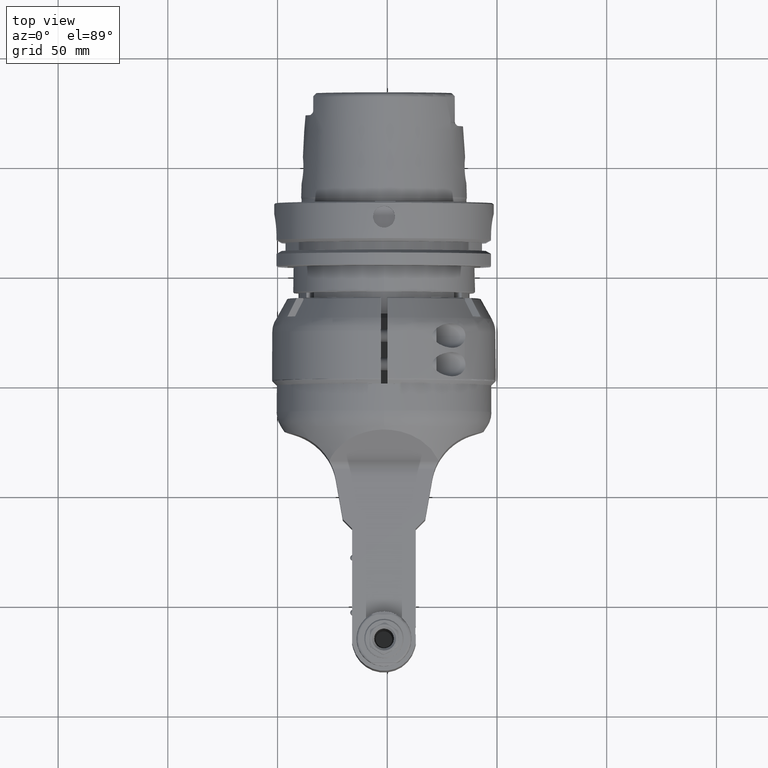
[diagram: clean part render]
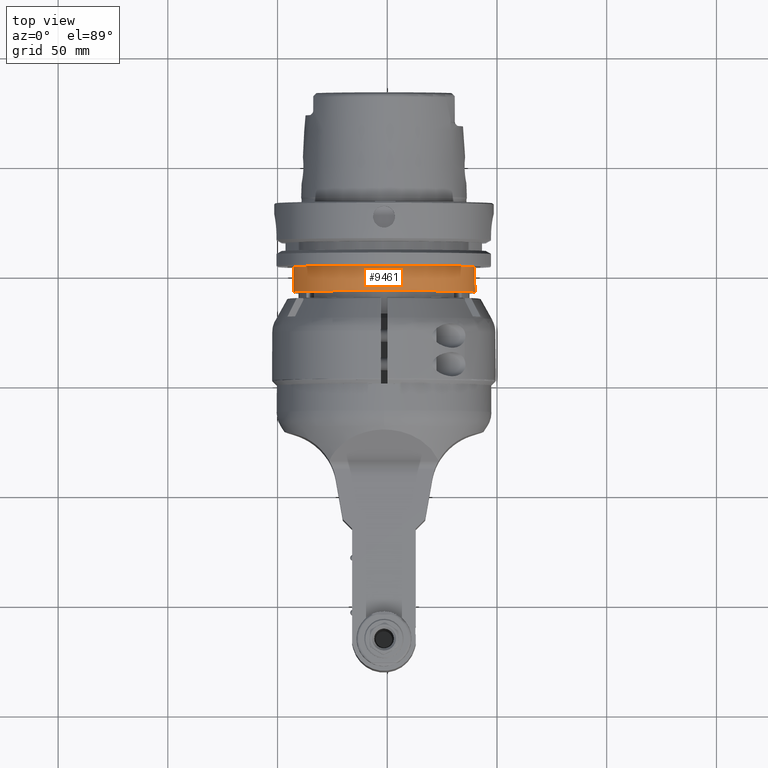
[diagram: same view with one face highlighted and labeled with its STEP entity id]
A machine part, top view. The second image highlights one B-rep face of the part: STEP entity #9461.
In plain terms, the highlighted cylindrical surface (bore or boss wall) has radius 41.5 mm, axis along (0, -1, 0).
Its self-contained STEP definition (entity closure, byte-faithful):
#395=CYLINDRICAL_SURFACE('',#10222,41.5);
#680=LINE('',#15846,#1363);
#1363=VECTOR('',#11790,41.5);
#2088=FACE_OUTER_BOUND('',#2684,.T.);
#2684=EDGE_LOOP('',(#6736,#6737,#6738,#6739,#6740));
#3356=CIRCLE('',#10220,41.5);
#3357=CIRCLE('',#10221,41.5);
#3358=CIRCLE('',#10223,41.5);
#4020=VERTEX_POINT('',#15839);
#4021=VERTEX_POINT('',#15840);
#4022=VERTEX_POINT('',#15845);
#5053=EDGE_CURVE('',#4020,#4021,#3356,.T.);
#5055=EDGE_CURVE('',#4021,#4020,#3357,.T.);
#5056=EDGE_CURVE('',#4020,#4022,#680,.T.);
#5057=EDGE_CURVE('',#4022,#4022,#3358,.T.);
#6736=ORIENTED_EDGE('',*,*,#5053,.F.);
#6737=ORIENTED_EDGE('',*,*,#5056,.T.);
#6738=ORIENTED_EDGE('',*,*,#5057,.F.);
#6739=ORIENTED_EDGE('',*,*,#5056,.F.);
#6740=ORIENTED_EDGE('',*,*,#5055,.F.);
#9461=ADVANCED_FACE('',(#2088),#395,.T.);
#10220=AXIS2_PLACEMENT_3D('',#15841,#11783,#11784);
#10221=AXIS2_PLACEMENT_3D('',#15843,#11786,#11787);
#10222=AXIS2_PLACEMENT_3D('',#15844,#11788,#11789);
#10223=AXIS2_PLACEMENT_3D('',#15847,#11791,#11792);
#11783=DIRECTION('center_axis',(0.,-1.,0.));
#11784=DIRECTION('ref_axis',(-1.,0.,0.));
#11786=DIRECTION('center_axis',(0.,-1.,0.));
#11787=DIRECTION('ref_axis',(-1.,0.,0.));
#11788=DIRECTION('center_axis',(0.,-1.,0.));
#11789=DIRECTION('ref_axis',(0.,0.,-1.));
#11790=DIRECTION('',(0.,1.,0.));
#11791=DIRECTION('center_axis',(0.,1.,0.));
#11792=DIRECTION('ref_axis',(0.,0.,-1.));
#15839=CARTESIAN_POINT('',(-5.08228421646152E-15,158.5,41.5));
#15840=CARTESIAN_POINT('',(41.5,158.5,-5.08228421646152E-15));
#15841=CARTESIAN_POINT('Origin',(0.,158.5,0.));
#15843=CARTESIAN_POINT('Origin',(0.,158.5,0.));
#15844=CARTESIAN_POINT('Origin',(0.,163.2,0.));
#15845=CARTESIAN_POINT('',(-5.08228421646152E-15,170.,41.5));
#15846=CARTESIAN_POINT('',(-5.08228421646152E-15,163.2,41.5));
#15847=CARTESIAN_POINT('Origin',(0.,170.,0.));